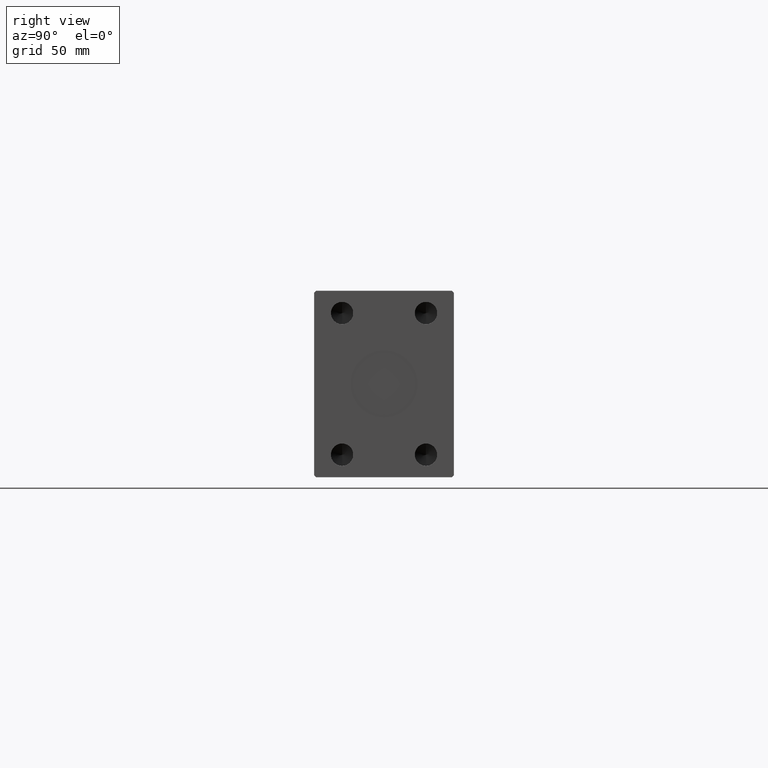
[diagram: clean part render]
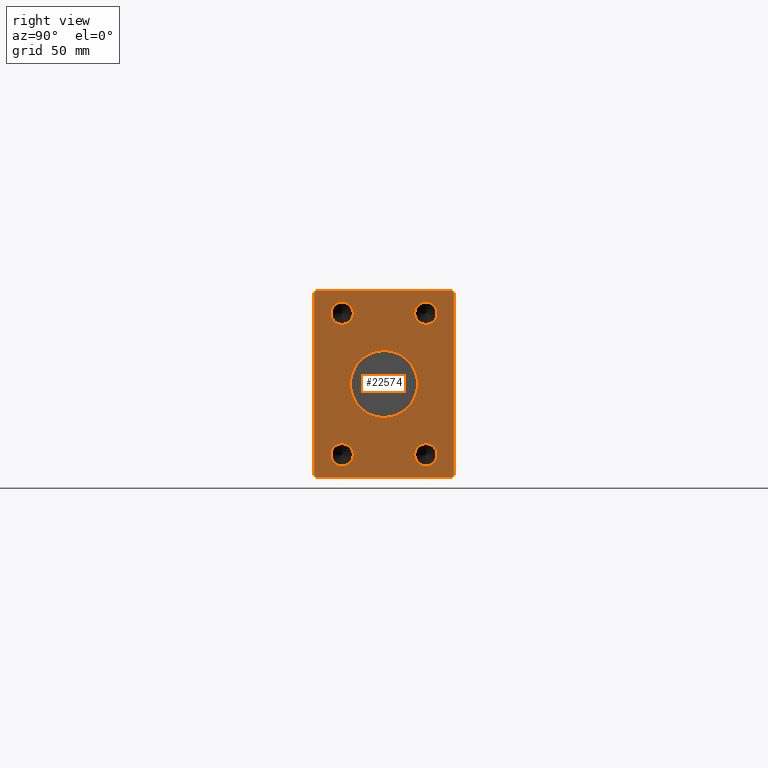
[diagram: same view with one face highlighted and labeled with its STEP entity id]
A machine part, right view. The second image highlights one B-rep face of the part: STEP entity #22574.
In plain terms, the highlighted planar face has unit normal (1, 0, 0).
Its self-contained STEP definition (entity closure, byte-faithful):
#358 = CARTESIAN_POINT ( 'NONE',  ( 332.0000000000000000, 0.000000000000000000, -18.00000000000000000 ) ) ;
#576 = CARTESIAN_POINT ( 'NONE',  ( 332.0000000000000000, 22.50000000000000000, -38.00000000000000000 ) ) ;
#721 = EDGE_CURVE ( 'NONE', #23653, #20634, #7999, .T. ) ;
#767 = VECTOR ( 'NONE', #7717, 1000.000000000000114 ) ;
#1082 = ORIENTED_EDGE ( 'NONE', *, *, #18959, .T. ) ;
#1274 = CIRCLE ( 'NONE', #26313, 5.999999999999998224 ) ;
#1533 = CARTESIAN_POINT ( 'NONE',  ( 332.0000000000000000, -22.50000000000000000, -32.00000000000000711 ) ) ;
#1807 = LINE ( 'NONE', #19054, #11321 ) ;
#2424 = DIRECTION ( 'NONE',  ( 1.000000000000000000, -0.000000000000000000, -0.000000000000000000 ) ) ;
#3161 = ORIENTED_EDGE ( 'NONE', *, *, #4957, .T. ) ;
#3285 = CARTESIAN_POINT ( 'NONE',  ( 332.0000000000000000, 0.000000000000000000, 0.000000000000000000 ) ) ;
#3299 = CARTESIAN_POINT ( 'NONE',  ( 332.0000000000000000, -22.50000000000000000, 38.00000000000000000 ) ) ;
#3327 = DIRECTION ( 'NONE',  ( 0.000000000000000000, 0.000000000000000000, -1.000000000000000000 ) ) ;
#3981 = VERTEX_POINT ( 'NONE', #5517 ) ;
#4101 = CARTESIAN_POINT ( 'NONE',  ( 332.0000000000000000, 22.50000000000000000, 38.00000000000000000 ) ) ;
#4144 = CARTESIAN_POINT ( 'NONE',  ( 332.0000000000000000, -22.50000000000000000, -38.00000000000000711 ) ) ;
#4257 = ORIENTED_EDGE ( 'NONE', *, *, #23327, .F. ) ;
#4400 = AXIS2_PLACEMENT_3D ( 'NONE', #3299, #23702, #21622 ) ;
#4957 = EDGE_CURVE ( 'NONE', #27569, #24217, #15551, .T. ) ;
#5243 = CARTESIAN_POINT ( 'NONE',  ( 332.0000000000000000, -36.50000000000000711, -50.00000000000000000 ) ) ;
#5517 = CARTESIAN_POINT ( 'NONE',  ( 332.0000000000000000, 2.204364238465235428E-15, 18.00000000000000000 ) ) ;
#6062 = CARTESIAN_POINT ( 'NONE',  ( 332.0000000000000000, 37.50000000000000711, -49.00000000000000000 ) ) ;
#6806 = VERTEX_POINT ( 'NONE', #22153 ) ;
#6930 = DIRECTION ( 'NONE',  ( 0.000000000000000000, 0.000000000000000000, -1.000000000000000000 ) ) ;
#7673 = ORIENTED_EDGE ( 'NONE', *, *, #28316, .F. ) ;
#7717 = DIRECTION ( 'NONE',  ( 0.000000000000000000, 0.7071067811865500152, -0.7071067811865451302 ) ) ;
#7995 = VECTOR ( 'NONE', #9414, 1000.000000000000000 ) ;
#7999 = CIRCLE ( 'NONE', #29449, 5.999999999999998224 ) ;
#8151 = DIRECTION ( 'NONE',  ( 0.000000000000000000, 0.000000000000000000, -1.000000000000000000 ) ) ;
#8535 = CARTESIAN_POINT ( 'NONE',  ( 332.0000000000000000, 22.50000000000000000, -44.00000000000000000 ) ) ;
#9414 = DIRECTION ( 'NONE',  ( 0.000000000000000000, 0.000000000000000000, -1.000000000000000000 ) ) ;
#9834 = CARTESIAN_POINT ( 'NONE',  ( 332.0000000000000000, 0.000000000000000000, 0.000000000000000000 ) ) ;
#9896 = DIRECTION ( 'NONE',  ( 0.000000000000000000, 0.000000000000000000, -1.000000000000000000 ) ) ;
#10185 = DIRECTION ( 'NONE',  ( 0.000000000000000000, 0.000000000000000000, -1.000000000000000000 ) ) ;
#10246 = LINE ( 'NONE', #41937, #28899 ) ;
#10300 = DIRECTION ( 'NONE',  ( 1.000000000000000000, -0.000000000000000000, -0.000000000000000000 ) ) ;
#10662 = DIRECTION ( 'NONE',  ( 1.000000000000000000, -0.000000000000000000, -0.000000000000000000 ) ) ;
#11321 = VECTOR ( 'NONE', #29777, 1000.000000000000000 ) ;
#11372 = EDGE_CURVE ( 'NONE', #42919, #30140, #41925, .T. ) ;
#12266 = AXIS2_PLACEMENT_3D ( 'NONE', #27586, #38092, #34501 ) ;
#12516 = CARTESIAN_POINT ( 'NONE',  ( 332.0000000000000000, -22.50000000000000000, 38.00000000000000000 ) ) ;
#12607 = EDGE_CURVE ( 'NONE', #20634, #23653, #42982, .T. ) ;
#12740 = ORIENTED_EDGE ( 'NONE', *, *, #32117, .F. ) ;
#12812 = DIRECTION ( 'NONE',  ( 0.000000000000000000, -1.000000000000000000, -1.901066822988281457E-16 ) ) ;
#12981 = CIRCLE ( 'NONE', #4400, 5.999999999999998224 ) ;
#13065 = CARTESIAN_POINT ( 'NONE',  ( 332.0000000000000000, 22.50000000000000000, 44.00000000000000000 ) ) ;
#13189 = ORIENTED_EDGE ( 'NONE', *, *, #11372, .T. ) ;
#13586 = CIRCLE ( 'NONE', #28591, 5.999999999999998224 ) ;
#13818 = DIRECTION ( 'NONE',  ( 0.000000000000000000, 0.000000000000000000, 1.000000000000000000 ) ) ;
#13907 = EDGE_CURVE ( 'NONE', #37793, #23928, #40488, .T. ) ;
#13950 = EDGE_CURVE ( 'NONE', #22950, #25043, #16921, .T. ) ;
#13976 = ORIENTED_EDGE ( 'NONE', *, *, #721, .F. ) ;
#14187 = CARTESIAN_POINT ( 'NONE',  ( 332.0000000000000000, 36.50000000000000711, -50.00000000000000000 ) ) ;
#14958 = CARTESIAN_POINT ( 'NONE',  ( 332.0000000000000000, 22.50000000000000000, -32.00000000000000000 ) ) ;
#15266 = EDGE_LOOP ( 'NONE', ( #12740, #44290 ) ) ;
#15324 = AXIS2_PLACEMENT_3D ( 'NONE', #3285, #37537, #8151 ) ;
#15551 = LINE ( 'NONE', #26059, #29895 ) ;
#15736 = ORIENTED_EDGE ( 'NONE', *, *, #40089, .T. ) ;
#15818 = VECTOR ( 'NONE', #17558, 1000.000000000000114 ) ;
#16410 = CARTESIAN_POINT ( 'NONE',  ( 332.0000000000000000, 22.50000000000000000, 32.00000000000000000 ) ) ;
#16881 = ORIENTED_EDGE ( 'NONE', *, *, #40533, .F. ) ;
#16921 = CIRCLE ( 'NONE', #19070, 5.999999999999998224 ) ;
#17167 = DIRECTION ( 'NONE',  ( 0.000000000000000000, 0.000000000000000000, -1.000000000000000000 ) ) ;
#17558 = DIRECTION ( 'NONE',  ( 0.000000000000000000, 0.7071067811865474617, 0.7071067811865474617 ) ) ;
#17828 = DIRECTION ( 'NONE',  ( 1.000000000000000000, -0.000000000000000000, -0.000000000000000000 ) ) ;
#18488 = EDGE_CURVE ( 'NONE', #33929, #36950, #1274, .T. ) ;
#18959 = EDGE_CURVE ( 'NONE', #20480, #42919, #1807, .T. ) ;
#19039 = EDGE_CURVE ( 'NONE', #29221, #6806, #43636, .T. ) ;
#19054 = CARTESIAN_POINT ( 'NONE',  ( 332.0000000000000000, -36.50000000000000711, -50.00000000000000000 ) ) ;
#19070 = AXIS2_PLACEMENT_3D ( 'NONE', #4144, #17828, #21409 ) ;
#19775 = DIRECTION ( 'NONE',  ( 0.000000000000000000, -0.7071067811865474617, -0.7071067811865474617 ) ) ;
#19933 = LINE ( 'NONE', #43419, #7995 ) ;
#19973 = CARTESIAN_POINT ( 'NONE',  ( 332.0000000000000000, 36.50000000000000711, 50.00000000000000000 ) ) ;
#20480 = VERTEX_POINT ( 'NONE', #5243 ) ;
#20558 = CARTESIAN_POINT ( 'NONE',  ( 332.0000000000000000, -22.50000000000000000, -44.00000000000000711 ) ) ;
#20634 = VERTEX_POINT ( 'NONE', #13065 ) ;
#21409 = DIRECTION ( 'NONE',  ( 0.000000000000000000, 0.000000000000000000, -1.000000000000000000 ) ) ;
#21455 = AXIS2_PLACEMENT_3D ( 'NONE', #9834, #29994, #3327 ) ;
#21622 = DIRECTION ( 'NONE',  ( 0.000000000000000000, 0.000000000000000000, -1.000000000000000000 ) ) ;
#21928 = CARTESIAN_POINT ( 'NONE',  ( 332.0000000000000000, -22.50000000000000000, 32.00000000000000000 ) ) ;
#21962 = EDGE_LOOP ( 'NONE', ( #35872, #40932, #3161, #28734, #25470, #1082, #13189, #15736 ) ) ;
#22153 = CARTESIAN_POINT ( 'NONE',  ( 332.0000000000000000, 36.50000000000000711, 50.00000000000000000 ) ) ;
#22574 = ADVANCED_FACE ( 'NONE', ( #26861, #30212, #29772, #40064, #23070, #37361 ), #26203, .T. ) ;
#22950 = VERTEX_POINT ( 'NONE', #1533 ) ;
#23070 = FACE_BOUND ( 'NONE', #15266, .T. ) ;
#23292 = DIRECTION ( 'NONE',  ( 0.000000000000000000, -0.7071067811865474617, 0.7071067811865474617 ) ) ;
#23327 = EDGE_CURVE ( 'NONE', #23928, #37793, #13586, .T. ) ;
#23653 = VERTEX_POINT ( 'NONE', #16410 ) ;
#23702 = DIRECTION ( 'NONE',  ( 1.000000000000000000, -0.000000000000000000, -0.000000000000000000 ) ) ;
#23866 = CARTESIAN_POINT ( 'NONE',  ( 332.0000000000000000, -37.50000000000001421, -49.00000000000000000 ) ) ;
#23928 = VERTEX_POINT ( 'NONE', #8535 ) ;
#24067 = DIRECTION ( 'NONE',  ( 1.000000000000000000, -0.000000000000000000, -0.000000000000000000 ) ) ;
#24217 = VERTEX_POINT ( 'NONE', #36382 ) ;
#24641 = EDGE_LOOP ( 'NONE', ( #34553, #7673 ) ) ;
#25043 = VERTEX_POINT ( 'NONE', #20558 ) ;
#25470 = ORIENTED_EDGE ( 'NONE', *, *, #26114, .T. ) ;
#26059 = CARTESIAN_POINT ( 'NONE',  ( 332.0000000000000000, -36.50000000000001421, 49.99999999999998579 ) ) ;
#26114 = EDGE_CURVE ( 'NONE', #36624, #20480, #27877, .T. ) ;
#26203 = PLANE ( 'NONE',  #21455 ) ;
#26221 = AXIS2_PLACEMENT_3D ( 'NONE', #576, #10662, #17167 ) ;
#26313 = AXIS2_PLACEMENT_3D ( 'NONE', #12516, #2424, #37110 ) ;
#26647 = CARTESIAN_POINT ( 'NONE',  ( 332.0000000000000000, 37.50000000000000711, 49.00000000000000000 ) ) ;
#26861 = FACE_BOUND ( 'NONE', #24641, .T. ) ;
#27037 = VERTEX_POINT ( 'NONE', #358 ) ;
#27295 = CIRCLE ( 'NONE', #27998, 18.00000000000000000 ) ;
#27569 = VERTEX_POINT ( 'NONE', #34866 ) ;
#27586 = CARTESIAN_POINT ( 'NONE',  ( 332.0000000000000000, 22.50000000000000000, 38.00000000000000000 ) ) ;
#27775 = VECTOR ( 'NONE', #23292, 1000.000000000000114 ) ;
#27877 = LINE ( 'NONE', #23866, #767 ) ;
#27998 = AXIS2_PLACEMENT_3D ( 'NONE', #36755, #37201, #9896 ) ;
#28057 = CARTESIAN_POINT ( 'NONE',  ( 332.0000000000000000, -22.50000000000000000, -38.00000000000000711 ) ) ;
#28236 = CARTESIAN_POINT ( 'NONE',  ( 332.0000000000000000, -37.50000000000001421, -49.00000000000000000 ) ) ;
#28299 = ORIENTED_EDGE ( 'NONE', *, *, #13950, .F. ) ;
#28316 = EDGE_CURVE ( 'NONE', #3981, #27037, #27295, .T. ) ;
#28546 = EDGE_CURVE ( 'NONE', #24217, #36624, #19933, .T. ) ;
#28591 = AXIS2_PLACEMENT_3D ( 'NONE', #33239, #36377, #36814 ) ;
#28734 = ORIENTED_EDGE ( 'NONE', *, *, #28546, .T. ) ;
#28899 = VECTOR ( 'NONE', #13818, 1000.000000000000000 ) ;
#29221 = VERTEX_POINT ( 'NONE', #37212 ) ;
#29449 = AXIS2_PLACEMENT_3D ( 'NONE', #4101, #24067, #10185 ) ;
#29714 = EDGE_LOOP ( 'NONE', ( #13976, #43181 ) ) ;
#29772 = FACE_BOUND ( 'NONE', #35060, .T. ) ;
#29777 = DIRECTION ( 'NONE',  ( 0.000000000000000000, 1.000000000000000000, 0.000000000000000000 ) ) ;
#29895 = VECTOR ( 'NONE', #19775, 1000.000000000000114 ) ;
#29924 = CARTESIAN_POINT ( 'NONE',  ( 332.0000000000000000, -22.50000000000000000, 44.00000000000000000 ) ) ;
#29994 = DIRECTION ( 'NONE',  ( 1.000000000000000000, 0.000000000000000000, 0.000000000000000000 ) ) ;
#30042 = LINE ( 'NONE', #19973, #37441 ) ;
#30140 = VERTEX_POINT ( 'NONE', #6062 ) ;
#30212 = FACE_BOUND ( 'NONE', #29714, .T. ) ;
#30453 = CARTESIAN_POINT ( 'NONE',  ( 332.0000000000000000, 36.50000000000000711, -50.00000000000000000 ) ) ;
#31782 = AXIS2_PLACEMENT_3D ( 'NONE', #28057, #10300, #6930 ) ;
#32117 = EDGE_CURVE ( 'NONE', #36950, #33929, #12981, .T. ) ;
#32248 = EDGE_LOOP ( 'NONE', ( #4257, #43389 ) ) ;
#33239 = CARTESIAN_POINT ( 'NONE',  ( 332.0000000000000000, 22.50000000000000000, -38.00000000000000000 ) ) ;
#33929 = VERTEX_POINT ( 'NONE', #29924 ) ;
#34501 = DIRECTION ( 'NONE',  ( 0.000000000000000000, 0.000000000000000000, -1.000000000000000000 ) ) ;
#34553 = ORIENTED_EDGE ( 'NONE', *, *, #40099, .F. ) ;
#34589 = CIRCLE ( 'NONE', #15324, 18.00000000000000000 ) ;
#34624 = CIRCLE ( 'NONE', #31782, 5.999999999999998224 ) ;
#34866 = CARTESIAN_POINT ( 'NONE',  ( 332.0000000000000000, -36.50000000000001421, 49.99999999999998579 ) ) ;
#35060 = EDGE_LOOP ( 'NONE', ( #16881, #28299 ) ) ;
#35872 = ORIENTED_EDGE ( 'NONE', *, *, #19039, .T. ) ;
#36377 = DIRECTION ( 'NONE',  ( 1.000000000000000000, -0.000000000000000000, -0.000000000000000000 ) ) ;
#36382 = CARTESIAN_POINT ( 'NONE',  ( 332.0000000000000000, -37.50000000000001421, 48.99999999999998579 ) ) ;
#36624 = VERTEX_POINT ( 'NONE', #28236 ) ;
#36755 = CARTESIAN_POINT ( 'NONE',  ( 332.0000000000000000, 0.000000000000000000, 0.000000000000000000 ) ) ;
#36814 = DIRECTION ( 'NONE',  ( 0.000000000000000000, 0.000000000000000000, -1.000000000000000000 ) ) ;
#36950 = VERTEX_POINT ( 'NONE', #21928 ) ;
#37110 = DIRECTION ( 'NONE',  ( 0.000000000000000000, 0.000000000000000000, -1.000000000000000000 ) ) ;
#37201 = DIRECTION ( 'NONE',  ( 1.000000000000000000, 0.000000000000000000, 0.000000000000000000 ) ) ;
#37212 = CARTESIAN_POINT ( 'NONE',  ( 332.0000000000000000, 37.50000000000000711, 49.00000000000000000 ) ) ;
#37361 = FACE_OUTER_BOUND ( 'NONE', #21962, .T. ) ;
#37441 = VECTOR ( 'NONE', #12812, 1000.000000000000000 ) ;
#37537 = DIRECTION ( 'NONE',  ( 1.000000000000000000, 0.000000000000000000, 0.000000000000000000 ) ) ;
#37793 = VERTEX_POINT ( 'NONE', #14958 ) ;
#38092 = DIRECTION ( 'NONE',  ( 1.000000000000000000, -0.000000000000000000, -0.000000000000000000 ) ) ;
#38458 = EDGE_CURVE ( 'NONE', #6806, #27569, #30042, .T. ) ;
#40064 = FACE_BOUND ( 'NONE', #32248, .T. ) ;
#40089 = EDGE_CURVE ( 'NONE', #30140, #29221, #10246, .T. ) ;
#40099 = EDGE_CURVE ( 'NONE', #27037, #3981, #34589, .T. ) ;
#40488 = CIRCLE ( 'NONE', #26221, 5.999999999999998224 ) ;
#40533 = EDGE_CURVE ( 'NONE', #25043, #22950, #34624, .T. ) ;
#40932 = ORIENTED_EDGE ( 'NONE', *, *, #38458, .T. ) ;
#41925 = LINE ( 'NONE', #14187, #15818 ) ;
#41937 = CARTESIAN_POINT ( 'NONE',  ( 332.0000000000000000, 37.50000000000000711, -49.00000000000000000 ) ) ;
#42919 = VERTEX_POINT ( 'NONE', #30453 ) ;
#42982 = CIRCLE ( 'NONE', #12266, 5.999999999999998224 ) ;
#43181 = ORIENTED_EDGE ( 'NONE', *, *, #12607, .F. ) ;
#43389 = ORIENTED_EDGE ( 'NONE', *, *, #13907, .F. ) ;
#43419 = CARTESIAN_POINT ( 'NONE',  ( 332.0000000000000000, -37.50000000000001421, 48.99999999999998579 ) ) ;
#43636 = LINE ( 'NONE', #26647, #27775 ) ;
#44290 = ORIENTED_EDGE ( 'NONE', *, *, #18488, .F. ) ;